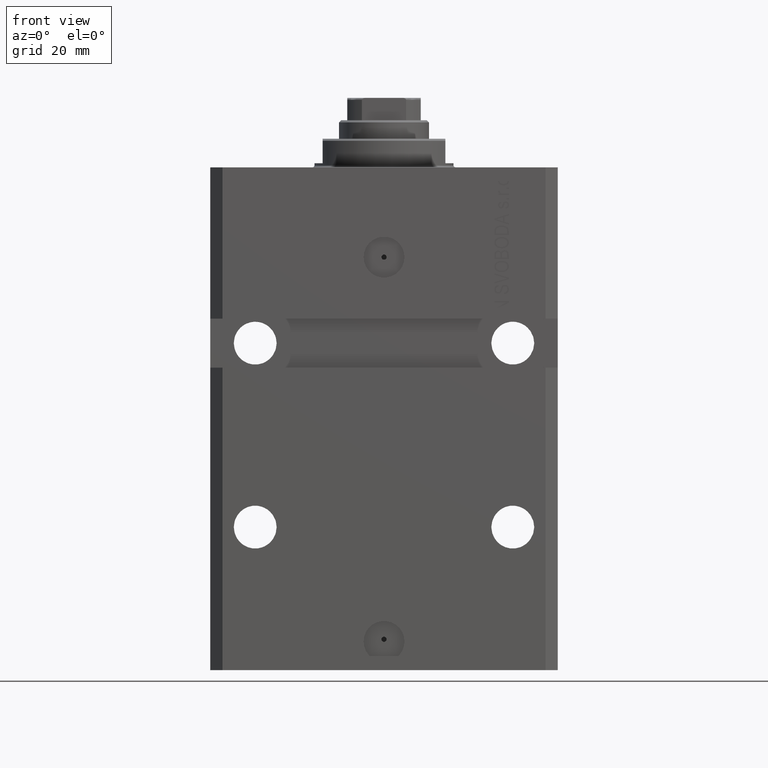
[diagram: clean part render]
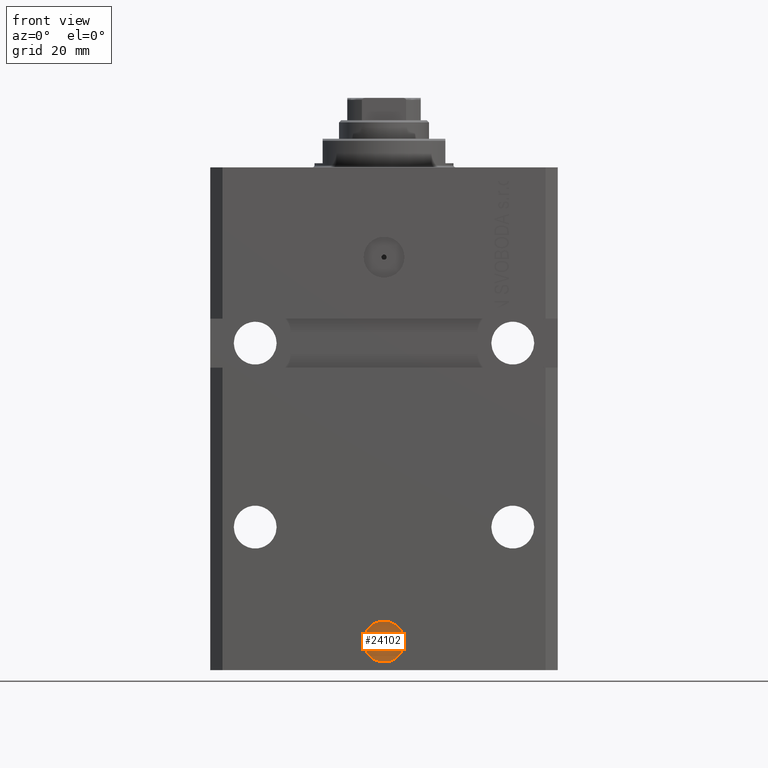
[diagram: same view with one face highlighted and labeled with its STEP entity id]
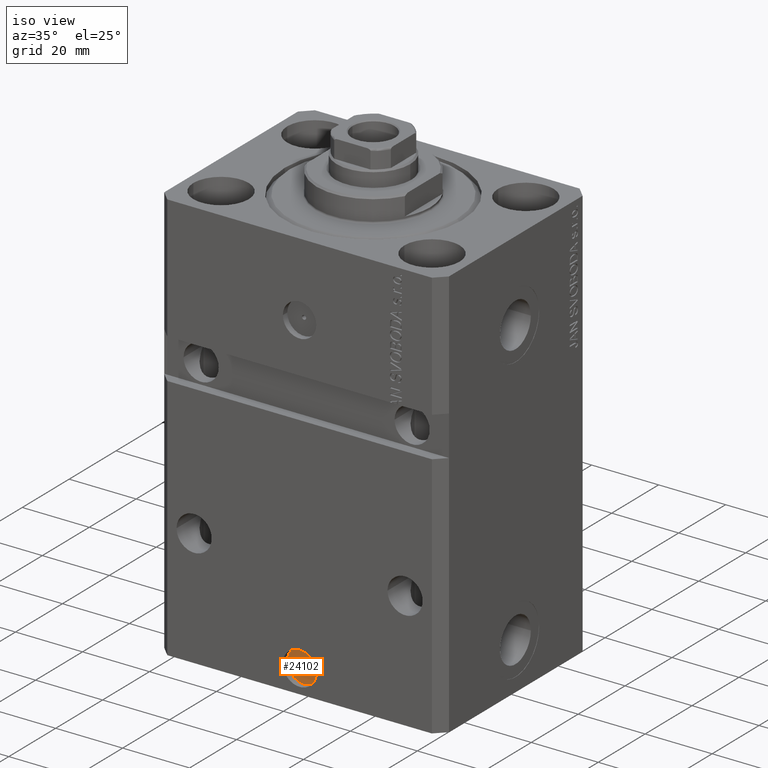
[diagram: same view with one face highlighted and labeled with its STEP entity id]
A machine part, front view. The second image highlights one B-rep face of the part: STEP entity #24102.
A second angle (iso view) of the same face is appended — the face is thin or edge-on in the first view.
In plain terms, the highlighted planar face has unit normal (0, -1, 0).
Its self-contained STEP definition (entity closure, byte-faithful):
#1895 = CARTESIAN_POINT ( 'NONE',  ( -2.234559053800897838E-16, -29.60000000000000142, -115.9999999999999858 ) ) ;
#2622 = ORIENTED_EDGE ( 'NONE', *, *, #16266, .T. ) ;
#3213 = AXIS2_PLACEMENT_3D ( 'NONE', #4536, #38978, #34296 ) ;
#4536 = CARTESIAN_POINT ( 'NONE',  ( 3.481207789079292456E-15, -29.60000000000000142, -115.4749999999999943 ) ) ;
#5595 = FACE_BOUND ( 'NONE', #15179, .T. ) ;
#5670 = DIRECTION ( 'NONE',  ( 1.176083712526788232E-16, -1.000000000000000000, 0.000000000000000000 ) ) ;
#5830 = PLANE ( 'NONE',  #6524 ) ;
#5955 = EDGE_CURVE ( 'NONE', #26947, #31251, #39369, .T. ) ;
#6524 = AXIS2_PLACEMENT_3D ( 'NONE', #1895, #39300, #47140 ) ;
#7206 = DIRECTION ( 'NONE',  ( 1.000000000000000000, 0.000000000000000000, 0.000000000000000000 ) ) ;
#8115 = CIRCLE ( 'NONE', #45047, 0.6250000000000036637 ) ;
#10488 = CIRCLE ( 'NONE', #19955, 5.000000000000006217 ) ;
#15179 = EDGE_LOOP ( 'NONE', ( #19839, #41763 ) ) ;
#15198 = ORIENTED_EDGE ( 'NONE', *, *, #24409, .T. ) ;
#16255 = EDGE_LOOP ( 'NONE', ( #2622, #15198 ) ) ;
#16266 = EDGE_CURVE ( 'NONE', #29080, #24221, #47445, .T. ) ;
#17374 = FACE_OUTER_BOUND ( 'NONE', #16255, .T. ) ;
#19839 = ORIENTED_EDGE ( 'NONE', *, *, #20368, .F. ) ;
#19955 = AXIS2_PLACEMENT_3D ( 'NONE', #32073, #28378, #7206 ) ;
#20368 = EDGE_CURVE ( 'NONE', #31251, #26947, #8115, .T. ) ;
#24102 = ADVANCED_FACE ( 'NONE', ( #5595, #17374 ), #5830, .T. ) ;
#24221 = VERTEX_POINT ( 'NONE', #48594 ) ;
#24409 = EDGE_CURVE ( 'NONE', #24221, #29080, #10488, .T. ) ;
#26947 = VERTEX_POINT ( 'NONE', #41276 ) ;
#28378 = DIRECTION ( 'NONE',  ( 1.176083712526788232E-16, -1.000000000000000000, 0.000000000000000000 ) ) ;
#28763 = DIRECTION ( 'NONE',  ( 1.000000000000000000, 0.000000000000000000, 0.000000000000000000 ) ) ;
#29080 = VERTEX_POINT ( 'NONE', #48165 ) ;
#29569 = DIRECTION ( 'NONE',  ( 1.176083712526788232E-16, -1.000000000000000000, 0.000000000000000000 ) ) ;
#31251 = VERTEX_POINT ( 'NONE', #32622 ) ;
#32073 = CARTESIAN_POINT ( 'NONE',  ( -2.234559053800897838E-16, -29.60000000000000142, -115.9999999999999858 ) ) ;
#32622 = CARTESIAN_POINT ( 'NONE',  ( 0.6250000000000072164, -29.60000000000000142, -115.4749999999999943 ) ) ;
#34296 = DIRECTION ( 'NONE',  ( 1.000000000000000000, 0.000000000000000000, 0.000000000000000000 ) ) ;
#36643 = CARTESIAN_POINT ( 'NONE',  ( -2.234559053800897838E-16, -29.60000000000000142, -115.9999999999999858 ) ) ;
#37242 = AXIS2_PLACEMENT_3D ( 'NONE', #36643, #5670, #28763 ) ;
#38978 = DIRECTION ( 'NONE',  ( 1.176083712526788232E-16, -1.000000000000000000, 0.000000000000000000 ) ) ;
#39300 = DIRECTION ( 'NONE',  ( 1.176083712526788232E-16, -1.000000000000000000, 0.000000000000000000 ) ) ;
#39369 = CIRCLE ( 'NONE', #3213, 0.6250000000000036637 ) ;
#41276 = CARTESIAN_POINT ( 'NONE',  ( -0.6250000000000002220, -29.60000000000000142, -115.4749999999999943 ) ) ;
#41639 = DIRECTION ( 'NONE',  ( 1.000000000000000000, 0.000000000000000000, 0.000000000000000000 ) ) ;
#41763 = ORIENTED_EDGE ( 'NONE', *, *, #5955, .F. ) ;
#44832 = CARTESIAN_POINT ( 'NONE',  ( 3.481207789079292456E-15, -29.60000000000000142, -115.4749999999999943 ) ) ;
#45047 = AXIS2_PLACEMENT_3D ( 'NONE', #44832, #29569, #41639 ) ;
#47140 = DIRECTION ( 'NONE',  ( 1.000000000000000000, 1.176083712526788232E-16, 0.000000000000000000 ) ) ;
#47445 = CIRCLE ( 'NONE', #37242, 5.000000000000006217 ) ;
#48165 = CARTESIAN_POINT ( 'NONE',  ( 5.000000000000006217, -29.60000000000000142, -115.9999999999999858 ) ) ;
#48594 = CARTESIAN_POINT ( 'NONE',  ( -5.000000000000006217, -29.60000000000000142, -115.9999999999999858 ) ) ;